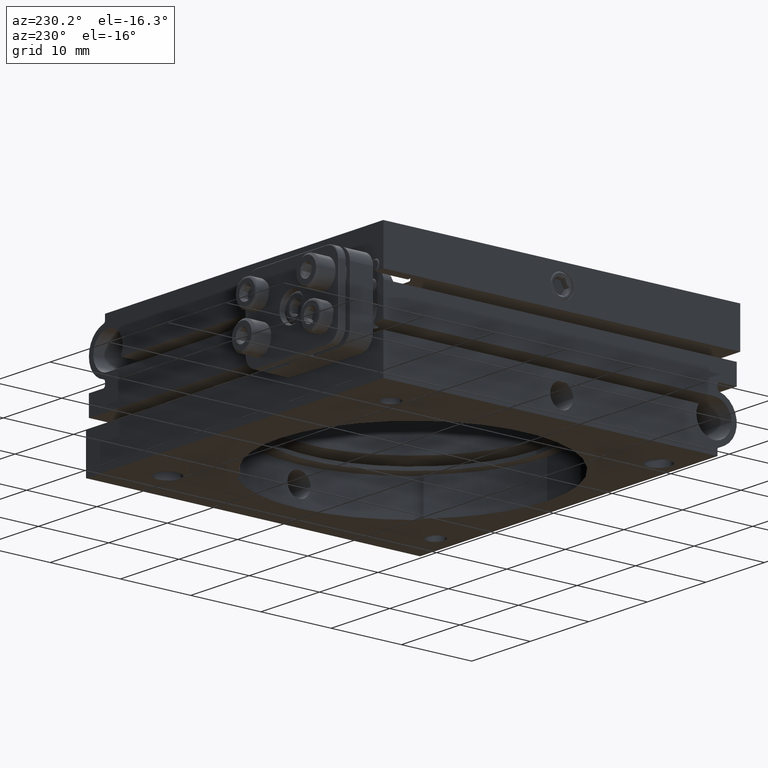
[diagram: clean part render]
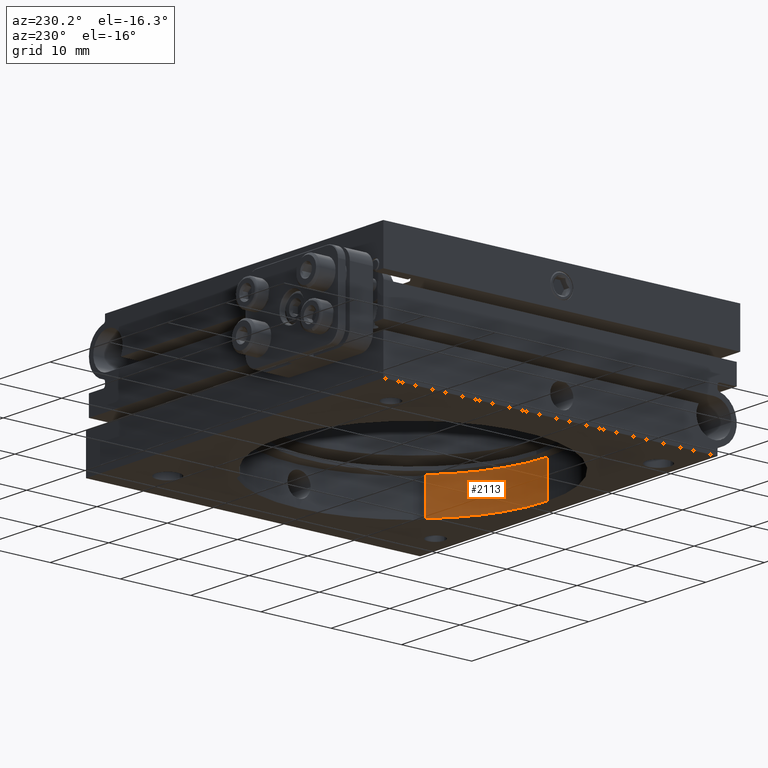
[diagram: same view with one face highlighted and labeled with its STEP entity id]
A machine part, auxiliary view. The second image highlights one B-rep face of the part: STEP entity #2113.
In plain terms, the highlighted cylindrical surface (partial cylindrical patch) has radius 19.05 mm, axis along (0, -0, -1).
Its self-contained STEP definition (entity closure, byte-faithful):
#517 = ORIENTED_EDGE ( 'NONE', *, *, #5259, .T. ) ;
#834 = CARTESIAN_POINT ( 'NONE',  ( 13.74508208040120039, -13.18996658839717639, -3.999999999999999112 ) ) ;
#1060 = CIRCLE ( 'NONE', #5918, 19.05000000000000071 ) ;
#1164 = CARTESIAN_POINT ( 'NONE',  ( 2.332952152375708043E-15, -19.05000000000000071, -3.999999999999998224 ) ) ;
#1528 = CARTESIAN_POINT ( 'NONE',  ( 13.74508208040120039, -13.18996658839717639, -8.999999999999998224 ) ) ;
#1557 = VERTEX_POINT ( 'NONE', #2064 ) ;
#1698 = DIRECTION ( 'NONE',  ( -9.244463733058732095E-33, 5.551115123125781470E-17, 1.000000000000000000 ) ) ;
#1746 = CARTESIAN_POINT ( 'NONE',  ( 2.332952152375708043E-15, -19.05000000000000071, -9.000000000000000000 ) ) ;
#1757 = LINE ( 'NONE', #9961, #9920 ) ;
#2064 = CARTESIAN_POINT ( 'NONE',  ( 2.332952152375708043E-15, -19.05000000000000071, -3.999999999999998224 ) ) ;
#2081 = DIRECTION ( 'NONE',  ( 9.244463733058732095E-33, -5.551115123125781470E-17, -1.000000000000000000 ) ) ;
#2113 = ADVANCED_FACE ( 'NONE', ( #9832 ), #4077, .F. ) ;
#2719 = EDGE_CURVE ( 'NONE', #1557, #7537, #9584, .T. ) ;
#2736 = AXIS2_PLACEMENT_3D ( 'NONE', #7192, #8008, #3065 ) ;
#3058 = ORIENTED_EDGE ( 'NONE', *, *, #6020, .F. ) ;
#3065 = DIRECTION ( 'NONE',  ( 0.000000000000000000, 1.000000000000000000, -4.553079989440438697E-17 ) ) ;
#3294 = VERTEX_POINT ( 'NONE', #1528 ) ;
#3833 = DIRECTION ( 'NONE',  ( 9.244463733058732095E-33, -5.551115123125781470E-17, -1.000000000000000000 ) ) ;
#4077 = CYLINDRICAL_SURFACE ( 'NONE', #5737, 19.05000000000000071 ) ;
#4260 = ORIENTED_EDGE ( 'NONE', *, *, #9421, .F. ) ;
#4354 = VECTOR ( 'NONE', #3833, 1000.000000000000000 ) ;
#4475 = CARTESIAN_POINT ( 'NONE',  ( 8.320017359752858885E-32, -4.996003610813203446E-16, -9.000000000000001776 ) ) ;
#4895 = CARTESIAN_POINT ( 'NONE',  ( 3.697785493223491743E-32, -2.220446049250312095E-16, -3.999999999999999112 ) ) ;
#5259 = EDGE_CURVE ( 'NONE', #3294, #7537, #1060, .T. ) ;
#5401 = DIRECTION ( 'NONE',  ( 0.000000000000000000, 1.000000000000000000, -9.106159978880877395E-17 ) ) ;
#5737 = AXIS2_PLACEMENT_3D ( 'NONE', #4895, #8808, #6309 ) ;
#5918 = AXIS2_PLACEMENT_3D ( 'NONE', #4475, #2081, #5401 ) ;
#6020 = EDGE_CURVE ( 'NONE', #3294, #9514, #1757, .T. ) ;
#6309 = DIRECTION ( 'NONE',  ( 0.000000000000000000, 1.000000000000000000, -4.553079989440438697E-17 ) ) ;
#6367 = CIRCLE ( 'NONE', #2736, 19.05000000000000071 ) ;
#7192 = CARTESIAN_POINT ( 'NONE',  ( 3.697785493223491743E-32, -2.220446049250312095E-16, -3.999999999999999112 ) ) ;
#7537 = VERTEX_POINT ( 'NONE', #1746 ) ;
#8008 = DIRECTION ( 'NONE',  ( 9.244463733058732095E-33, -5.551115123125781470E-17, -1.000000000000000000 ) ) ;
#8808 = DIRECTION ( 'NONE',  ( 9.244463733058732095E-33, -5.551115123125781470E-17, -1.000000000000000000 ) ) ;
#8927 = EDGE_LOOP ( 'NONE', ( #9754, #4260, #3058, #517 ) ) ;
#9421 = EDGE_CURVE ( 'NONE', #9514, #1557, #6367, .T. ) ;
#9514 = VERTEX_POINT ( 'NONE', #834 ) ;
#9584 = LINE ( 'NONE', #1164, #4354 ) ;
#9754 = ORIENTED_EDGE ( 'NONE', *, *, #2719, .F. ) ;
#9832 = FACE_OUTER_BOUND ( 'NONE', #8927, .T. ) ;
#9920 = VECTOR ( 'NONE', #1698, 1000.000000000000000 ) ;
#9961 = CARTESIAN_POINT ( 'NONE',  ( 13.74508208040120039, -13.18996658839717817, -3.999999999999998224 ) ) ;